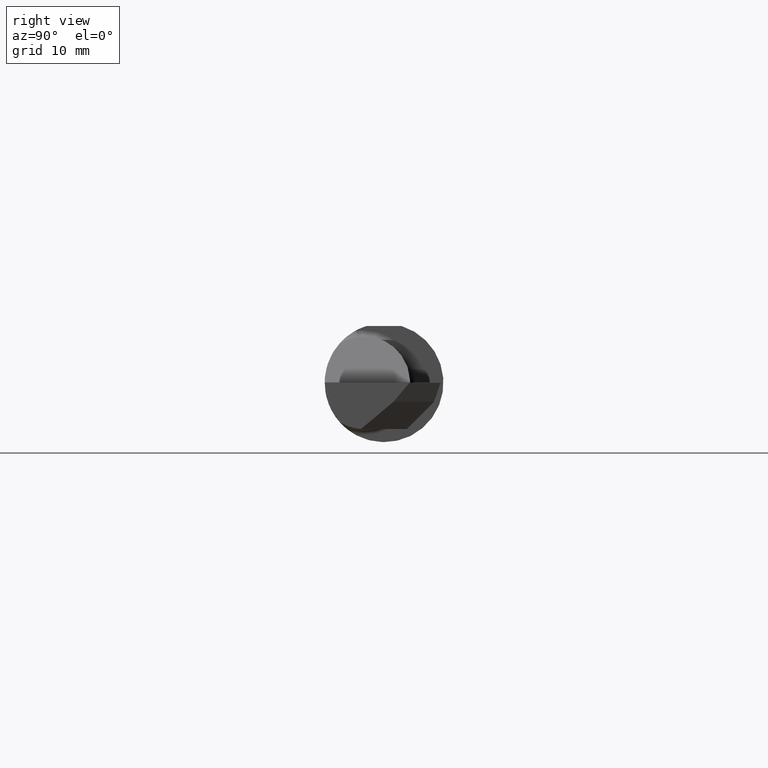
[diagram: clean part render]
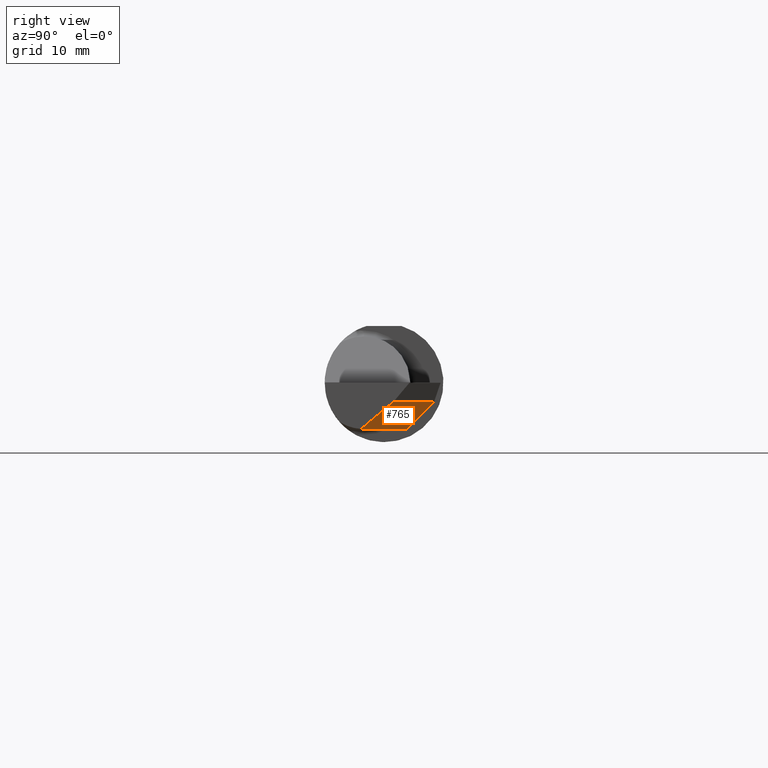
[diagram: same view with one face highlighted and labeled with its STEP entity id]
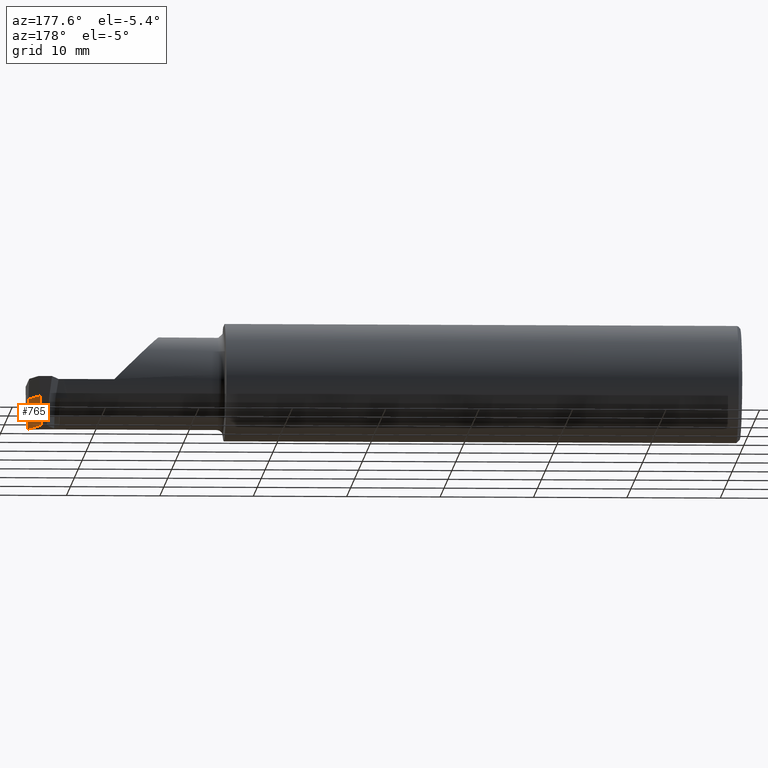
[diagram: same view with one face highlighted and labeled with its STEP entity id]
A machine part, right view. The second image highlights one B-rep face of the part: STEP entity #765.
A second angle (auxiliary view) of the same face is appended — the face is thin or edge-on in the first view.
In plain terms, the highlighted planar face has unit normal (0.9277, 0.2399, -0.2859).
Its self-contained STEP definition (entity closure, byte-faithful):
#22 = LINE ( 'NONE', #73, #650 ) ;
#42 = LINE ( 'NONE', #714, #386 ) ;
#73 = CARTESIAN_POINT ( 'NONE',  ( 3.000000000000000444, 0.05591204140292282271, -0.06663337621120969667 ) ) ;
#84 = ORIENTED_EDGE ( 'NONE', *, *, #539, .F. ) ;
#90 = VERTEX_POINT ( 'NONE', #467 ) ;
#98 = VECTOR ( 'NONE', #730, 39.37007874015748854 ) ;
#118 = CARTESIAN_POINT ( 'NONE',  ( 2.579423879288050170, 1.666229512840833760, -0.07999999999950303808 ) ) ;
#124 = FACE_OUTER_BOUND ( 'NONE', #454, .T. ) ;
#143 = AXIS2_PLACEMENT_3D ( 'NONE', #872, #420, #732 ) ;
#149 = LINE ( 'NONE', #367, #218 ) ;
#155 = ORIENTED_EDGE ( 'NONE', *, *, #317, .T. ) ;
#171 = VERTEX_POINT ( 'NONE', #305 ) ;
#172 = CARTESIAN_POINT ( 'NONE',  ( 2.998911043542020760, -0.09271680594006928566, -0.1948809690765552771 ) ) ;
#218 = VECTOR ( 'NONE', #523, 39.37007874015748854 ) ;
#219 = ORIENTED_EDGE ( 'NONE', *, *, #482, .F. ) ;
#232 = DIRECTION ( 'NONE',  ( -0.000000000000000000, 0.7660444431189790127, 0.6427876096865381417 ) ) ;
#244 = VERTEX_POINT ( 'NONE', #941 ) ;
#288 = ORIENTED_EDGE ( 'NONE', *, *, #548, .T. ) ;
#291 = CARTESIAN_POINT ( 'NONE',  ( 2.950171339358596878, 0.09560379093680541895, -0.1950000000000000344 ) ) ;
#305 = CARTESIAN_POINT ( 'NONE',  ( 3.000000000000000444, -0.09664390695082392124, -0.1946430162087387505 ) ) ;
#317 = EDGE_CURVE ( 'NONE', #244, #527, #42, .T. ) ;
#367 = CARTESIAN_POINT ( 'NONE',  ( 2.959700516520066049, 0.2877597428298782622, -0.002844048106925039631 ) ) ;
#386 = VECTOR ( 'NONE', #787, 39.37007874015748854 ) ;
#396 = CARTESIAN_POINT ( 'NONE',  ( 2.997857342922081614, -0.08878430348549444517, -0.1950000000000000344 ) ) ;
#412 = VERTEX_POINT ( 'NONE', #432 ) ;
#420 = DIRECTION ( 'NONE',  ( 0.9277270166603107659, 0.2399265199904075663, -0.2859332921571956510 ) ) ;
#432 = CARTESIAN_POINT ( 'NONE',  ( 3.000000000000000444, 0.03998231948179904044, -0.07999999999998004541 ) ) ;
#454 = EDGE_LOOP ( 'NONE', ( #634, #155, #288, #219, #84 ) ) ;
#467 = CARTESIAN_POINT ( 'NONE',  ( 2.955874287213053009, 0.2106037909368746464, -0.07999999999992984945 ) ) ;
#482 = EDGE_CURVE ( 'NONE', #412, #90, #796, .T. ) ;
#523 = DIRECTION ( 'NONE',  ( 0.03504448777032940360, 0.7066724431718360844, 0.7066724431718440780 ) ) ;
#527 = VERTEX_POINT ( 'NONE', #291 ) ;
#539 = EDGE_CURVE ( 'NONE', #171, #412, #22, .T. ) ;
#548 = EDGE_CURVE ( 'NONE', #527, #90, #149, .T. ) ;
#625 = CARTESIAN_POINT ( 'NONE',  ( 2.996839862858540204, -0.08485000000000005038, -0.1950000000000000067 ) ) ;
#634 = ORIENTED_EDGE ( 'NONE', *, *, #635, .F. ) ;
#635 = EDGE_CURVE ( 'NONE', #244, #171, #888, .T. ) ;
#650 = VECTOR ( 'NONE', #232, 39.37007874015748143 ) ;
#714 = CARTESIAN_POINT ( 'NONE',  ( 2.938605064927498400, 0.1403272557387227615, -0.1950000000000000622 ) ) ;
#730 = DIRECTION ( 'NONE',  ( -0.2503800040543800454, 0.9681476403781235085, 2.839667383400701055E-13 ) ) ;
#732 = DIRECTION ( 'NONE',  ( -0.2945363905204957389, 0.000000000000000000, -0.9556402642517517476 ) ) ;
#765 = ADVANCED_FACE ( 'NONE', ( #124 ), #939, .T. ) ;
#775 = CARTESIAN_POINT ( 'NONE',  ( 3.000000000000000444, -0.09664390695082392124, -0.1946430162087387505 ) ) ;
#787 = DIRECTION ( 'NONE',  ( -0.2503800040544622574, 0.9681476403781024143, -2.767176021110959872E-16 ) ) ;
#796 = LINE ( 'NONE', #118, #98 ) ;
#872 = CARTESIAN_POINT ( 'NONE',  ( 2.942943407995260774, 1.760242055220890611, 1.178345914460131594 ) ) ;
#888 =( BOUNDED_CURVE ( )  B_SPLINE_CURVE ( 3, ( #625, #396, #172, #775 ),
 .UNSPECIFIED., .F., .F. ) 
 B_SPLINE_CURVE_WITH_KNOTS ( ( 4, 4 ),
 ( 0.6981317007977304590, 0.7586502095447519300 ),
 .UNSPECIFIED. ) 
 CURVE ( )  GEOMETRIC_REPRESENTATION_ITEM ( )  RATIONAL_B_SPLINE_CURVE ( ( 1.000000000000000000, 0.9996948157954455016, 0.9996948157954455016, 1.000000000000000000 ) ) 
 REPRESENTATION_ITEM ( '' )  );
#939 = PLANE ( 'NONE',  #143 ) ;
#941 = CARTESIAN_POINT ( 'NONE',  ( 2.996839862858540204, -0.08485000000000005038, -0.1950000000000000067 ) ) ;